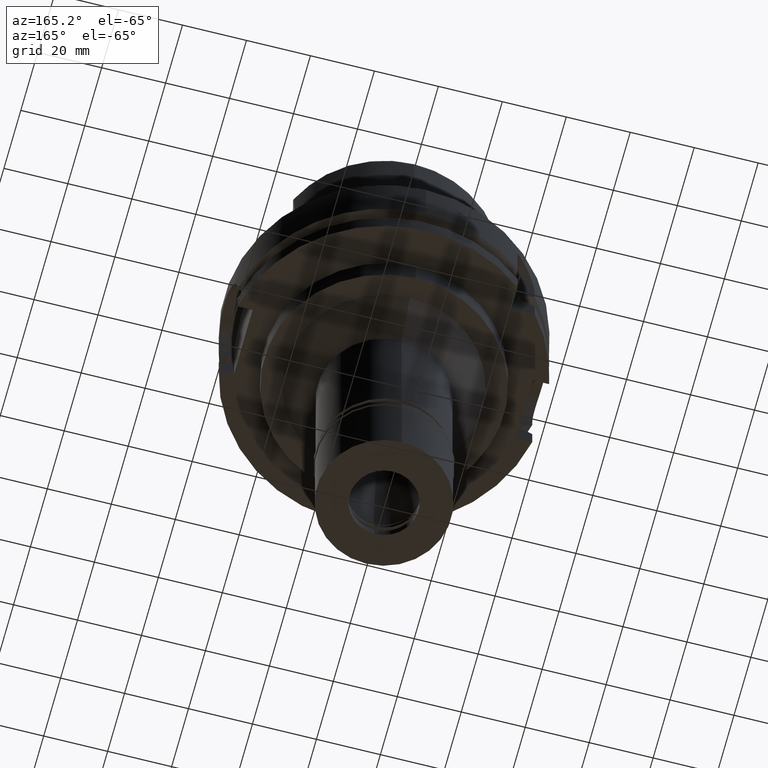
[diagram: clean part render]
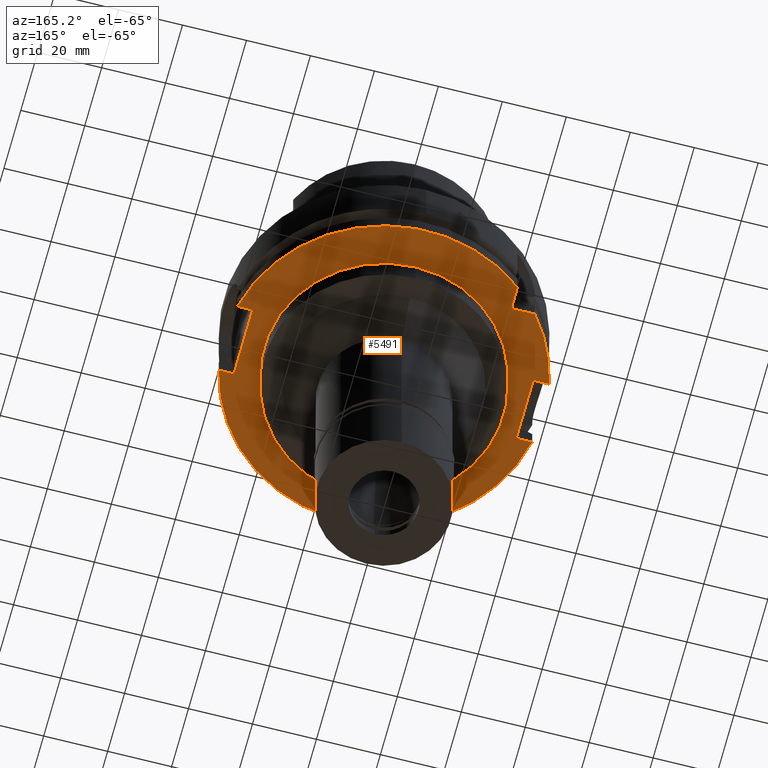
[diagram: same view with one face highlighted and labeled with its STEP entity id]
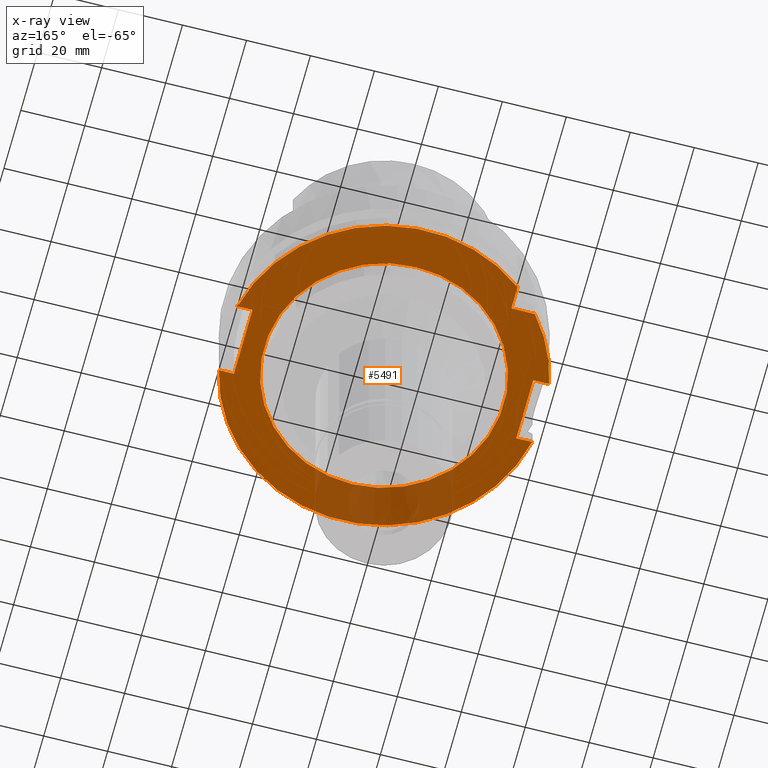
[diagram: x-ray of the same camera — body ghosted, the highlighted face saturated]
A machine part, auxiliary view. The second image highlights one B-rep face of the part: STEP entity #5491.
The next image is the same camera in x-ray: the body ghosted, the highlighted face saturated — about 17% of this face is hidden behind the body in this view.
In plain terms, the highlighted planar face has unit normal (0, 0, 1).
Its self-contained STEP definition (entity closure, byte-faithful):
#17 = CARTESIAN_POINT ( 'NONE',  ( -31.50000000000000000, 31.50000000000000000, -29.00000000000000000 ) ) ;
#220 = AXIS2_PLACEMENT_3D ( 'NONE', #4573, #1574, #4106 ) ;
#423 = LINE ( 'NONE', #2996, #4375 ) ;
#461 = VERTEX_POINT ( 'NONE', #17 ) ;
#467 = CARTESIAN_POINT ( 'NONE',  ( -48.98979485565999425, -10.00000000000000000, -29.00000000000000000 ) ) ;
#535 = DIRECTION ( 'NONE',  ( -0.7765951326141738997, 0.6299999999999789102, 0.0000000000000000000 ) ) ;
#658 = CARTESIAN_POINT ( 'NONE',  ( -48.98979485565999425, 10.00000000000000000, -29.00000000000000000 ) ) ;
#675 = VECTOR ( 'NONE', #3735, 1000.000000000000000 ) ;
#688 = ORIENTED_EDGE ( 'NONE', *, *, #4851, .F. ) ;
#710 = CARTESIAN_POINT ( 'NONE',  ( 0.0000000000000000000, 0.0000000000000000000, -29.00000000000000000 ) ) ;
#764 = AXIS2_PLACEMENT_3D ( 'NONE', #2845, #1541, #2902 ) ;
#788 = LINE ( 'NONE', #1681, #4077 ) ;
#833 = DIRECTION ( 'NONE',  ( 0.0000000000000000000, -1.000000000000000000, 0.0000000000000000000 ) ) ;
#837 = VERTEX_POINT ( 'NONE', #3631 ) ;
#848 = CARTESIAN_POINT ( 'NONE',  ( -44.00000000000000000, 10.00000000000000000, -29.00000000000000000 ) ) ;
#1001 = DIRECTION ( 'NONE',  ( -1.000000000000000000, -1.711257052401000108E-14, 0.0000000000000000000 ) ) ;
#1040 = EDGE_CURVE ( 'NONE', #461, #1467, #4147, .T. ) ;
#1056 = VECTOR ( 'NONE', #1001, 1000.000000000000000 ) ;
#1071 = FACE_BOUND ( 'NONE', #2890, .T. ) ;
#1127 = FACE_OUTER_BOUND ( 'NONE', #3087, .T. ) ;
#1180 = DIRECTION ( 'NONE',  ( 4.798503851105999980E-14, 1.000000000000000000, 0.0000000000000000000 ) ) ;
#1411 = ORIENTED_EDGE ( 'NONE', *, *, #1040, .T. ) ;
#1428 = DIRECTION ( 'NONE',  ( 0.0000000000000000000, 0.0000000000000000000, -1.000000000000000000 ) ) ;
#1443 = CARTESIAN_POINT ( 'NONE',  ( 48.77499359303000404, -11.00000000000000000, -29.00000000000000000 ) ) ;
#1447 = EDGE_CURVE ( 'NONE', #3531, #2129, #2835, .T. ) ;
#1467 = VERTEX_POINT ( 'NONE', #5341 ) ;
#1485 = AXIS2_PLACEMENT_3D ( 'NONE', #3538, #3073, #535 ) ;
#1541 = DIRECTION ( 'NONE',  ( 0.0000000000000000000, 0.0000000000000000000, -1.000000000000000000 ) ) ;
#1574 = DIRECTION ( 'NONE',  ( 0.0000000000000000000, 0.0000000000000000000, 1.000000000000000000 ) ) ;
#1662 = EDGE_CURVE ( 'NONE', #3701, #4367, #4622, .T. ) ;
#1681 = CARTESIAN_POINT ( 'NONE',  ( -44.00000000000000000, -10.00000000000000000, -29.00000000000000000 ) ) ;
#1744 = LINE ( 'NONE', #848, #3008 ) ;
#1797 = CARTESIAN_POINT ( 'NONE',  ( 44.00000000000000000, -11.00000000000000000, -29.00000000000000000 ) ) ;
#1871 = ORIENTED_EDGE ( 'NONE', *, *, #2560, .F. ) ;
#1875 = ORIENTED_EDGE ( 'NONE', *, *, #2465, .T. ) ;
#1888 = ORIENTED_EDGE ( 'NONE', *, *, #1447, .F. ) ;
#1956 = ORIENTED_EDGE ( 'NONE', *, *, #5013, .F. ) ;
#2033 = CARTESIAN_POINT ( 'NONE',  ( 48.77499359303000404, 11.00000000000000000, -29.00000000000000000 ) ) ;
#2070 = CARTESIAN_POINT ( 'NONE',  ( 0.0000000000000000000, 0.0000000000000000000, -29.00000000000000000 ) ) ;
#2129 = VERTEX_POINT ( 'NONE', #3798 ) ;
#2207 = EDGE_CURVE ( 'NONE', #2129, #4626, #5287, .T. ) ;
#2465 = EDGE_CURVE ( 'NONE', #4830, #5521, #423, .T. ) ;
#2560 = EDGE_CURVE ( 'NONE', #3378, #1467, #3381, .T. ) ;
#2566 = CARTESIAN_POINT ( 'NONE',  ( 48.77499359303000404, 11.00000000000000000, -29.00000000000000000 ) ) ;
#2679 = CARTESIAN_POINT ( 'NONE',  ( 0.0000000000000000000, 37.50000000000000000, -29.00000000000000000 ) ) ;
#2785 = DIRECTION ( 'NONE',  ( 0.0000000000000000000, 0.0000000000000000000, 1.000000000000000000 ) ) ;
#2835 = CIRCLE ( 'NONE', #3550, 50.00000000000000000 ) ;
#2845 = CARTESIAN_POINT ( 'NONE',  ( 0.0000000000000000000, 0.0000000000000000000, -29.00000000000000000 ) ) ;
#2890 = EDGE_LOOP ( 'NONE', ( #4085, #688 ) ) ;
#2902 = DIRECTION ( 'NONE',  ( 0.0000000000000000000, 1.000000000000000000, 0.0000000000000000000 ) ) ;
#2996 = CARTESIAN_POINT ( 'NONE',  ( -44.00000000000000000, -10.00000000000000000, -29.00000000000000000 ) ) ;
#3008 = VECTOR ( 'NONE', #4683, 1000.000000000000000 ) ;
#3073 = DIRECTION ( 'NONE',  ( 0.0000000000000000000, 0.0000000000000000000, 1.000000000000000000 ) ) ;
#3087 = EDGE_LOOP ( 'NONE', ( #1871, #4660, #3805, #5454, #1888, #1956, #1875, #3802, #3562, #3977, #1411 ) ) ;
#3164 = CARTESIAN_POINT ( 'NONE',  ( -38.82975663071000128, 31.50000000000000000, -29.00000000000000000 ) ) ;
#3166 = EDGE_CURVE ( 'NONE', #3603, #837, #4157, .T. ) ;
#3178 = CARTESIAN_POINT ( 'NONE',  ( -44.00000000000000000, 10.00000000000000000, -29.00000000000000000 ) ) ;
#3215 = VECTOR ( 'NONE', #5444, 1000.000000000000000 ) ;
#3259 = LINE ( 'NONE', #2033, #675 ) ;
#3307 = LINE ( 'NONE', #3476, #3215 ) ;
#3376 = EDGE_CURVE ( 'NONE', #5521, #4367, #1744, .T. ) ;
#3378 = VERTEX_POINT ( 'NONE', #2566 ) ;
#3381 = CIRCLE ( 'NONE', #4377, 50.00000000000000000 ) ;
#3385 = DIRECTION ( 'NONE',  ( -1.000000000000000000, -4.627973610177000155E-14, 0.0000000000000000000 ) ) ;
#3476 = CARTESIAN_POINT ( 'NONE',  ( 44.00000000000000000, 11.00000000000000000, -29.00000000000000000 ) ) ;
#3531 = VERTEX_POINT ( 'NONE', #467 ) ;
#3538 = CARTESIAN_POINT ( 'NONE',  ( 0.0000000000000000000, 0.0000000000000000000, -29.00000000000000000 ) ) ;
#3550 = AXIS2_PLACEMENT_3D ( 'NONE', #2070, #4692, #833 ) ;
#3562 = ORIENTED_EDGE ( 'NONE', *, *, #1662, .F. ) ;
#3603 = VERTEX_POINT ( 'NONE', #2679 ) ;
#3631 = CARTESIAN_POINT ( 'NONE',  ( 0.0000000000000000000, -37.50000000000000000, -29.00000000000000000 ) ) ;
#3701 = VERTEX_POINT ( 'NONE', #3164 ) ;
#3731 = CARTESIAN_POINT ( 'NONE',  ( -31.50000000000000000, 31.50000000000000000, -29.00000000000000000 ) ) ;
#3735 = DIRECTION ( 'NONE',  ( -1.000000000000000000, 1.785659532940000023E-14, 0.0000000000000000000 ) ) ;
#3798 = CARTESIAN_POINT ( 'NONE',  ( 48.77499359303000404, -11.00000000000000000, -29.00000000000000000 ) ) ;
#3802 = ORIENTED_EDGE ( 'NONE', *, *, #3376, .T. ) ;
#3805 = ORIENTED_EDGE ( 'NONE', *, *, #3887, .T. ) ;
#3847 = EDGE_CURVE ( 'NONE', #461, #3701, #5190, .T. ) ;
#3856 = CARTESIAN_POINT ( 'NONE',  ( -31.50000000000000000, 31.50000000000000000, -29.00000000000000000 ) ) ;
#3887 = EDGE_CURVE ( 'NONE', #5489, #4626, #3307, .T. ) ;
#3898 = AXIS2_PLACEMENT_3D ( 'NONE', #4027, #1428, #5327 ) ;
#3977 = ORIENTED_EDGE ( 'NONE', *, *, #3847, .F. ) ;
#3999 = CARTESIAN_POINT ( 'NONE',  ( -44.00000000000000000, -10.00000000000000000, -29.00000000000000000 ) ) ;
#4027 = CARTESIAN_POINT ( 'NONE',  ( 0.0000000000000000000, 0.0000000000000000000, -29.00000000000000000 ) ) ;
#4070 = CARTESIAN_POINT ( 'NONE',  ( 44.00000000000000000, 11.00000000000000000, -29.00000000000000000 ) ) ;
#4077 = VECTOR ( 'NONE', #3385, 1000.000000000000000 ) ;
#4085 = ORIENTED_EDGE ( 'NONE', *, *, #3166, .F. ) ;
#4106 = DIRECTION ( 'NONE',  ( 1.000000000000000000, 0.0000000000000000000, 0.0000000000000000000 ) ) ;
#4147 = LINE ( 'NONE', #3731, #4873 ) ;
#4157 = CIRCLE ( 'NONE', #764, 37.50000000000000000 ) ;
#4367 = VERTEX_POINT ( 'NONE', #658 ) ;
#4375 = VECTOR ( 'NONE', #5159, 1000.000000000000000 ) ;
#4377 = AXIS2_PLACEMENT_3D ( 'NONE', #710, #2785, #5428 ) ;
#4482 = PLANE ( 'NONE',  #220 ) ;
#4573 = CARTESIAN_POINT ( 'NONE',  ( 0.0000000000000000000, 0.0000000000000000000, -29.00000000000000000 ) ) ;
#4622 = CIRCLE ( 'NONE', #1485, 50.00000000000000711 ) ;
#4626 = VERTEX_POINT ( 'NONE', #1797 ) ;
#4660 = ORIENTED_EDGE ( 'NONE', *, *, #5519, .T. ) ;
#4683 = DIRECTION ( 'NONE',  ( -1.000000000000000000, 4.627973610177000155E-14, 0.0000000000000000000 ) ) ;
#4692 = DIRECTION ( 'NONE',  ( 0.0000000000000000000, 0.0000000000000000000, 1.000000000000000000 ) ) ;
#4733 = DIRECTION ( 'NONE',  ( -1.000000000000000000, -4.798503851105999980E-14, 0.0000000000000000000 ) ) ;
#4813 = VECTOR ( 'NONE', #4733, 1000.000000000000000 ) ;
#4830 = VERTEX_POINT ( 'NONE', #3999 ) ;
#4851 = EDGE_CURVE ( 'NONE', #837, #3603, #5397, .T. ) ;
#4873 = VECTOR ( 'NONE', #1180, 1000.000000000000000 ) ;
#5013 = EDGE_CURVE ( 'NONE', #4830, #3531, #788, .T. ) ;
#5159 = DIRECTION ( 'NONE',  ( 0.0000000000000000000, 1.000000000000000000, 0.0000000000000000000 ) ) ;
#5190 = LINE ( 'NONE', #3856, #4813 ) ;
#5287 = LINE ( 'NONE', #1443, #1056 ) ;
#5327 = DIRECTION ( 'NONE',  ( 0.0000000000000000000, -1.000000000000000000, 0.0000000000000000000 ) ) ;
#5341 = CARTESIAN_POINT ( 'NONE',  ( -31.50000000000000000, 38.82975663071000128, -29.00000000000000000 ) ) ;
#5397 = CIRCLE ( 'NONE', #3898, 37.50000000000000000 ) ;
#5428 = DIRECTION ( 'NONE',  ( 0.0000000000000000000, 1.000000000000000000, 0.0000000000000000000 ) ) ;
#5444 = DIRECTION ( 'NONE',  ( 0.0000000000000000000, -1.000000000000000000, 0.0000000000000000000 ) ) ;
#5454 = ORIENTED_EDGE ( 'NONE', *, *, #2207, .F. ) ;
#5489 = VERTEX_POINT ( 'NONE', #4070 ) ;
#5491 = ADVANCED_FACE ( 'NONE', ( #1127, #1071 ), #4482, .F. ) ;
#5519 = EDGE_CURVE ( 'NONE', #3378, #5489, #3259, .T. ) ;
#5521 = VERTEX_POINT ( 'NONE', #3178 ) ;